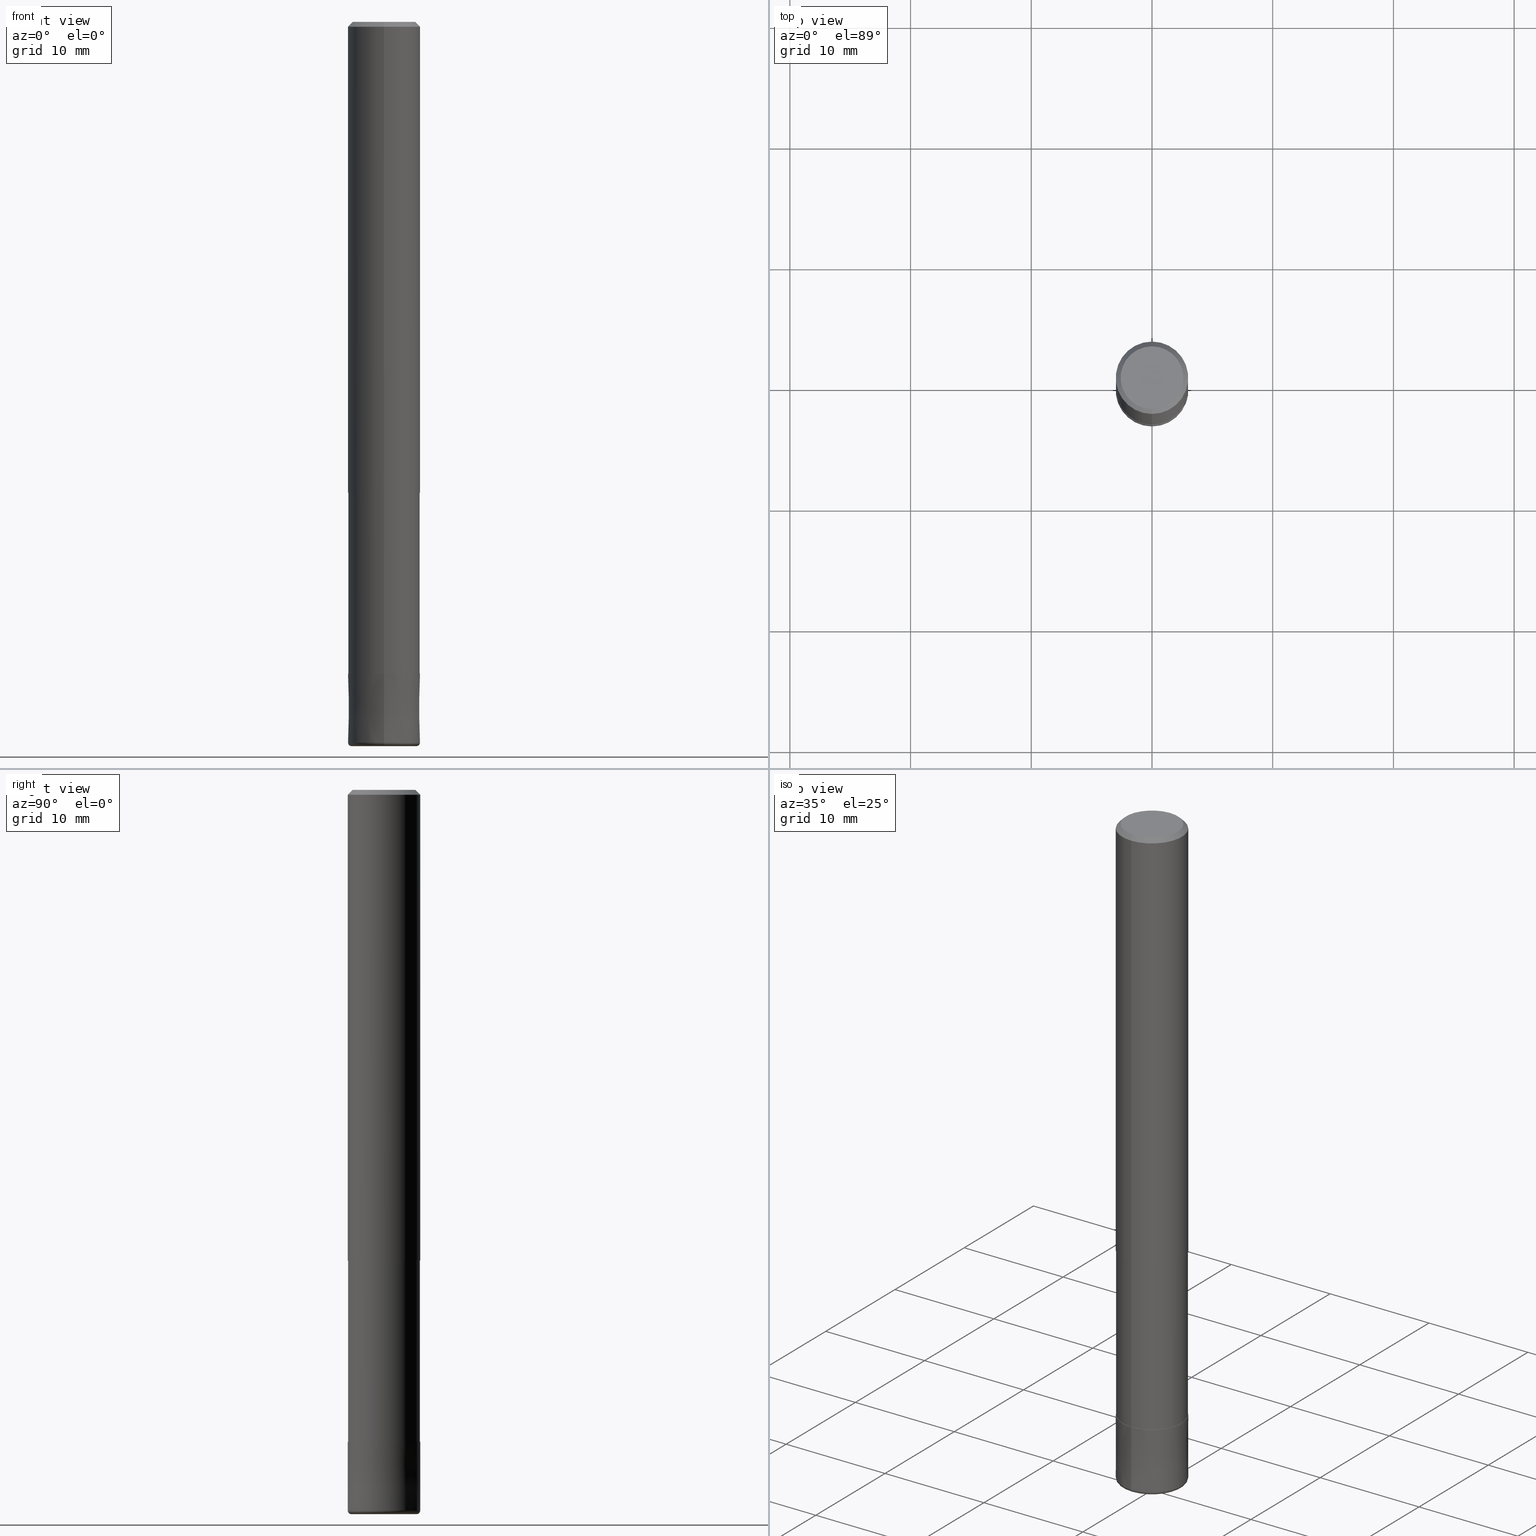
[diagram: canonical four-view strip — front | top / right | iso, engineering-drawing reading convention]
A machine part, canonical four-view strip (front | top / right | iso — engineering-drawing reading convention). The complete STEP part file that produces these views, byte-faithful:
ISO-10303-21;
HEADER;
FILE_DESCRIPTION(('no description'),'unknown implementation level');
FILE_NAME('HHRS6060-03-210-Huellk.stp','  ',('CIMSOURCE GmbH'),('CADClick - KiM GmbH - www.kimweb.de'),'unknown preprocess','ACIS','unknown authorization');
FILE_SCHEMA(('automotive_design'));
ENDSEC;
DATA;
#1=MECHANICAL_DESIGN_GEOMETRIC_PRESENTATION_REPRESENTATION(' ',(#14,#15,#16,#17,#18,#19,#20,#21,#22,#23,#24,#25,#26,#27,#28,#29,#30,#31,#32,#33,#34,#35,#36,#37,#38,#39,#40,#41,#42,#43,#44,#45,#46,#47,#48,#49,#50,#51,#52,#53,#54,#55,#56,#57,#58,#59,#60,#61,#62,#63,#64,#65,#66,#67,#68,#69,#70,#71,#72,#73,#74,#75,#76,#77,#78,#79,#80,#81,#82,#83,#84,#85,#86,#87,#88,#89,#90,#91,#92,#93,#94,#95,#96,#97),#10);
#2=PRODUCT_DEFINITION_CONTEXT('',#98,'design');
#3=APPLICATION_PROTOCOL_DEFINITION('INTERNATIONAL STANDARD','automotive_design',1994,#98);
#4=PRODUCT_CATEGORY_RELATIONSHIP('NONE','NONE',#99,#100);
#5=SHAPE_DEFINITION_REPRESENTATION(#101,#102);
#6=PRODUCT_DEFINITION_CONTEXT('',#103,'design');
#7=APPLICATION_PROTOCOL_DEFINITION('INTERNATIONAL STANDARD','automotive_design',1994,#103);
#8=PRODUCT_CATEGORY_RELATIONSHIP('NONE','NONE',#104,#105);
#9=SHAPE_DEFINITION_REPRESENTATION(#106,#107);
#10= (GEOMETRIC_REPRESENTATION_CONTEXT(3)GLOBAL_UNCERTAINTY_ASSIGNED_CONTEXT((#110))GLOBAL_UNIT_ASSIGNED_CONTEXT((#112,#113,#114))REPRESENTATION_CONTEXT('NONE','WORKSPACE'));
#14=STYLED_ITEM('',(#116),#117);
#15=STYLED_ITEM('',(#118),#119);
#16=STYLED_ITEM('',(#120),#121);
#17=STYLED_ITEM('',(#122),#123);
#18=STYLED_ITEM('',(#124),#125);
#19=STYLED_ITEM('',(#126),#127);
#20=STYLED_ITEM('',(#128),#129);
#21=STYLED_ITEM('',(#130),#131);
#22=STYLED_ITEM('',(#132),#133);
#23=STYLED_ITEM('',(#134),#135);
#24=STYLED_ITEM('',(#136),#137);
#25=STYLED_ITEM('',(#138),#139);
#26=STYLED_ITEM('',(#140),#141);
#27=STYLED_ITEM('',(#142),#143);
#28=STYLED_ITEM('',(#144),#145);
#29=STYLED_ITEM('',(#146),#147);
#30=STYLED_ITEM('',(#148),#149);
#31=STYLED_ITEM('',(#150),#151);
#32=STYLED_ITEM('',(#152),#153);
#33=STYLED_ITEM('',(#154),#155);
#34=STYLED_ITEM('',(#156),#157);
#35=STYLED_ITEM('',(#158),#159);
#36=STYLED_ITEM('',(#160),#161);
#37=STYLED_ITEM('',(#162),#163);
#38=STYLED_ITEM('',(#164),#165);
#39=STYLED_ITEM('',(#166),#167);
#40=STYLED_ITEM('',(#168),#169);
#41=STYLED_ITEM('',(#170),#171);
#42=STYLED_ITEM('',(#172),#173);
#43=STYLED_ITEM('',(#174),#175);
#44=STYLED_ITEM('',(#176),#177);
#45=STYLED_ITEM('',(#178),#179);
#46=STYLED_ITEM('',(#180),#181);
#47=STYLED_ITEM('',(#182),#183);
#48=STYLED_ITEM('',(#184),#185);
#49=STYLED_ITEM('',(#186),#187);
#50=STYLED_ITEM('',(#188),#189);
#51=STYLED_ITEM('',(#190),#191);
#52=STYLED_ITEM('',(#192),#193);
#53=STYLED_ITEM('',(#194),#195);
#54=STYLED_ITEM('',(#196),#197);
#55=STYLED_ITEM('',(#198),#199);
#56=STYLED_ITEM('',(#200),#201);
#57=STYLED_ITEM('',(#202),#203);
#58=STYLED_ITEM('',(#204),#205);
#59=STYLED_ITEM('',(#206),#207);
#60=STYLED_ITEM('',(#208),#209);
#61=STYLED_ITEM('',(#210),#211);
#62=STYLED_ITEM('',(#212),#213);
#63=STYLED_ITEM('',(#214),#215);
#64=STYLED_ITEM('',(#216),#217);
#65=STYLED_ITEM('',(#218),#219);
#66=STYLED_ITEM('',(#220),#221);
#67=STYLED_ITEM('',(#222),#223);
#68=STYLED_ITEM('',(#224),#225);
#69=STYLED_ITEM('',(#226),#227);
#70=STYLED_ITEM('',(#228),#229);
#71=STYLED_ITEM('',(#230),#231);
#72=STYLED_ITEM('',(#232),#233);
#73=STYLED_ITEM('',(#234),#235);
#74=STYLED_ITEM('',(#236),#237);
#75=STYLED_ITEM('',(#238),#239);
#76=STYLED_ITEM('',(#240),#241);
#77=STYLED_ITEM('',(#242),#243);
#78=STYLED_ITEM('',(#244),#245);
#79=STYLED_ITEM('',(#246),#247);
#80=STYLED_ITEM('',(#248),#249);
#81=STYLED_ITEM('',(#250),#251);
#82=STYLED_ITEM('',(#252),#253);
#83=STYLED_ITEM('',(#254),#255);
#84=STYLED_ITEM('',(#256),#257);
#85=STYLED_ITEM('',(#258),#259);
#86=STYLED_ITEM('',(#260),#261);
#87=STYLED_ITEM('',(#262),#263);
#88=STYLED_ITEM('',(#264),#265);
#89=STYLED_ITEM('',(#266),#267);
#90=STYLED_ITEM('',(#268),#269);
#91=STYLED_ITEM('',(#270),#271);
#92=STYLED_ITEM('',(#272),#273);
#93=STYLED_ITEM('',(#274),#275);
#94=STYLED_ITEM('',(#276),#277);
#95=STYLED_ITEM('',(#278),#279);
#96=STYLED_ITEM('',(#280),#281);
#97=STYLED_ITEM('',(#282),#283);
#98=APPLICATION_CONTEXT(' ');
#99=PRODUCT_CATEGORY('part','NONE');
#100=PRODUCT_RELATED_PRODUCT_CATEGORY('detail',' ',(#284));
#101=PRODUCT_DEFINITION_SHAPE('NONE','NONE',#285);
#102=ADVANCED_BREP_SHAPE_REPRESENTATION('1',(#247,#286),#10);
#103=APPLICATION_CONTEXT(' ');
#104=PRODUCT_CATEGORY('part','NONE');
#105=PRODUCT_RELATED_PRODUCT_CATEGORY('detail',' ',(#287));
#106=PRODUCT_DEFINITION_SHAPE('NONE','NONE',#288);
#107=ADVANCED_BREP_SHAPE_REPRESENTATION('2',(#131,#289),#10);
#110=UNCERTAINTY_MEASURE_WITH_UNIT(LENGTH_MEASURE(1.0E-006),#112,'','');
#112= (CONVERSION_BASED_UNIT('MILLIMETRE',#292)LENGTH_UNIT()NAMED_UNIT(#295));
#113= (NAMED_UNIT(#297)PLANE_ANGLE_UNIT()SI_UNIT($,.RADIAN.));
#114= (NAMED_UNIT(#297)SOLID_ANGLE_UNIT()SI_UNIT($,.STERADIAN.));
#116=PRESENTATION_STYLE_ASSIGNMENT((#303));
#117=VERTEX_POINT('',#304);
#118=PRESENTATION_STYLE_ASSIGNMENT((#305));
#119=ADVANCED_FACE('',(#306),#307,.F.);
#120=PRESENTATION_STYLE_ASSIGNMENT((#308));
#121=VERTEX_POINT('',#309);
#122=PRESENTATION_STYLE_ASSIGNMENT((#310));
#123=EDGE_CURVE('',#227,#151,#311,.T.);
#124=PRESENTATION_STYLE_ASSIGNMENT((#312));
#125=EDGE_CURVE('',#153,#151,#313,.T.);
#126=PRESENTATION_STYLE_ASSIGNMENT((#314));
#127=EDGE_CURVE('',#223,#143,#315,.T.);
#128=PRESENTATION_STYLE_ASSIGNMENT((#316));
#129=EDGE_CURVE('',#229,#149,#317,.T.);
#130=PRESENTATION_STYLE_ASSIGNMENT((#318));
#131=MANIFOLD_SOLID_BREP('2',#319);
#132=PRESENTATION_STYLE_ASSIGNMENT((#320));
#133=VERTEX_POINT('',#321);
#134=PRESENTATION_STYLE_ASSIGNMENT((#322));
#135=EDGE_CURVE('',#143,#223,#323,.T.);
#136=PRESENTATION_STYLE_ASSIGNMENT((#324));
#137=EDGE_CURVE('',#139,#185,#325,.T.);
#138=PRESENTATION_STYLE_ASSIGNMENT((#326));
#139=VERTEX_POINT('',#327);
#140=PRESENTATION_STYLE_ASSIGNMENT((#328));
#141=EDGE_CURVE('',#121,#273,#329,.T.);
#142=PRESENTATION_STYLE_ASSIGNMENT((#330));
#143=VERTEX_POINT('',#331);
#144=PRESENTATION_STYLE_ASSIGNMENT((#332));
#145=VERTEX_POINT('',#333);
#146=PRESENTATION_STYLE_ASSIGNMENT((#334));
#147=EDGE_CURVE('',#231,#241,#335,.T.);
#148=PRESENTATION_STYLE_ASSIGNMENT((#336));
#149=VERTEX_POINT('',#337);
#150=PRESENTATION_STYLE_ASSIGNMENT((#338));
#151=VERTEX_POINT('',#339);
#152=PRESENTATION_STYLE_ASSIGNMENT((#340));
#153=VERTEX_POINT('',#341);
#154=PRESENTATION_STYLE_ASSIGNMENT((#342));
#155=EDGE_CURVE('',#145,#149,#343,.T.);
#156=PRESENTATION_STYLE_ASSIGNMENT((#344));
#157=EDGE_CURVE('',#217,#183,#345,.T.);
#158=PRESENTATION_STYLE_ASSIGNMENT((#346));
#159=ADVANCED_FACE('',(#347),#348,.T.);
#160=PRESENTATION_STYLE_ASSIGNMENT((#349));
#161=EDGE_CURVE('',#277,#265,#350,.T.);
#162=PRESENTATION_STYLE_ASSIGNMENT((#351));
#163=EDGE_CURVE('',#183,#217,#352,.T.);
#164=PRESENTATION_STYLE_ASSIGNMENT((#353));
#165=ADVANCED_FACE('',(#354),#355,.T.);
#166=PRESENTATION_STYLE_ASSIGNMENT((#356));
#167=EDGE_CURVE('',#229,#261,#357,.T.);
#168=PRESENTATION_STYLE_ASSIGNMENT((#358));
#169=ADVANCED_FACE('',(#359),#360,.T.);
#170=PRESENTATION_STYLE_ASSIGNMENT((#361));
#171=EDGE_CURVE('',#149,#229,#362,.T.);
#172=PRESENTATION_STYLE_ASSIGNMENT((#363));
#173=ADVANCED_FACE('',(#364),#365,.T.);
#174=PRESENTATION_STYLE_ASSIGNMENT((#366));
#175=EDGE_CURVE('',#227,#117,#367,.T.);
#176=PRESENTATION_STYLE_ASSIGNMENT((#368));
#177=ADVANCED_FACE('',(#369,#370),#371,.T.);
#178=PRESENTATION_STYLE_ASSIGNMENT((#372));
#179=EDGE_CURVE('',#265,#217,#373,.T.);
#180=PRESENTATION_STYLE_ASSIGNMENT((#374));
#181=EDGE_CURVE('',#277,#219,#375,.T.);
#182=PRESENTATION_STYLE_ASSIGNMENT((#376));
#183=VERTEX_POINT('',#377);
#184=PRESENTATION_STYLE_ASSIGNMENT((#378));
#185=VERTEX_POINT('',#379);
#186=PRESENTATION_STYLE_ASSIGNMENT((#380));
#187=EDGE_CURVE('',#151,#227,#381,.T.);
#188=PRESENTATION_STYLE_ASSIGNMENT((#382));
#189=ADVANCED_FACE('',(#383),#384,.T.);
#190=PRESENTATION_STYLE_ASSIGNMENT((#385));
#191=EDGE_CURVE('',#203,#207,#386,.T.);
#192=PRESENTATION_STYLE_ASSIGNMENT((#387));
#193=EDGE_CURVE('',#117,#153,#388,.T.);
#194=PRESENTATION_STYLE_ASSIGNMENT((#389));
#195=EDGE_CURVE('',#143,#261,#390,.T.);
#196=PRESENTATION_STYLE_ASSIGNMENT((#391));
#197=EDGE_CURVE('',#261,#145,#392,.T.);
#198=PRESENTATION_STYLE_ASSIGNMENT((#393));
#199=ADVANCED_FACE('',(#394),#395,.T.);
#200=PRESENTATION_STYLE_ASSIGNMENT((#396));
#201=EDGE_CURVE('',#241,#139,#397,.T.);
#202=PRESENTATION_STYLE_ASSIGNMENT((#398));
#203=VERTEX_POINT('',#399);
#204=PRESENTATION_STYLE_ASSIGNMENT((#400));
#205=EDGE_CURVE('',#207,#203,#401,.T.);
#206=PRESENTATION_STYLE_ASSIGNMENT((#402));
#207=VERTEX_POINT('',#403);
#208=PRESENTATION_STYLE_ASSIGNMENT((#404));
#209=ADVANCED_FACE('',(#405),#406,.T.);
#210=PRESENTATION_STYLE_ASSIGNMENT((#407));
#211=ADVANCED_FACE('',(#408),#409,.T.);
#212=PRESENTATION_STYLE_ASSIGNMENT((#410));
#213=EDGE_CURVE('',#153,#117,#411,.T.);
#214=PRESENTATION_STYLE_ASSIGNMENT((#412));
#215=ADVANCED_FACE('',(#413),#414,.T.);
#216=PRESENTATION_STYLE_ASSIGNMENT((#415));
#217=VERTEX_POINT('',#416);
#218=PRESENTATION_STYLE_ASSIGNMENT((#417));
#219=VERTEX_POINT('',#418);
#220=PRESENTATION_STYLE_ASSIGNMENT((#419));
#221=ADVANCED_FACE('',(#420),#421,.T.);
#222=PRESENTATION_STYLE_ASSIGNMENT((#422));
#223=VERTEX_POINT('',#423);
#224=PRESENTATION_STYLE_ASSIGNMENT((#424));
#225=EDGE_CURVE('',#185,#231,#425,.T.);
#226=PRESENTATION_STYLE_ASSIGNMENT((#426));
#227=VERTEX_POINT('',#427);
#228=PRESENTATION_STYLE_ASSIGNMENT((#428));
#229=VERTEX_POINT('',#429);
#230=PRESENTATION_STYLE_ASSIGNMENT((#430));
#231=VERTEX_POINT('',#431);
#232=PRESENTATION_STYLE_ASSIGNMENT((#432));
#233=EDGE_CURVE('',#183,#277,#433,.T.);
#234=PRESENTATION_STYLE_ASSIGNMENT((#434));
#235=EDGE_CURVE('',#219,#133,#435,.T.);
#236=PRESENTATION_STYLE_ASSIGNMENT((#436));
#237=ADVANCED_FACE('',(#437),#438,.T.);
#238=PRESENTATION_STYLE_ASSIGNMENT((#439));
#239=EDGE_CURVE('',#185,#139,#440,.T.);
#240=PRESENTATION_STYLE_ASSIGNMENT((#441));
#241=VERTEX_POINT('',#442);
#242=PRESENTATION_STYLE_ASSIGNMENT((#443));
#243=EDGE_CURVE('',#265,#277,#444,.T.);
#244=PRESENTATION_STYLE_ASSIGNMENT((#445));
#245=EDGE_CURVE('',#241,#231,#446,.T.);
#246=PRESENTATION_STYLE_ASSIGNMENT((#447));
#247=MANIFOLD_SOLID_BREP('1',#448);
#248=PRESENTATION_STYLE_ASSIGNMENT((#449));
#249=ADVANCED_FACE('',(#450,#451),#452,.T.);
#250=PRESENTATION_STYLE_ASSIGNMENT((#453));
#251=ADVANCED_FACE('',(#454,#455),#456,.T.);
#252=PRESENTATION_STYLE_ASSIGNMENT((#457));
#253=EDGE_CURVE('',#121,#207,#458,.T.);
#254=PRESENTATION_STYLE_ASSIGNMENT((#459));
#255=EDGE_CURVE('',#145,#261,#460,.T.);
#256=PRESENTATION_STYLE_ASSIGNMENT((#461));
#257=ADVANCED_FACE('',(#462,#463),#464,.T.);
#258=PRESENTATION_STYLE_ASSIGNMENT((#465));
#259=EDGE_CURVE('',#203,#273,#466,.T.);
#260=PRESENTATION_STYLE_ASSIGNMENT((#467));
#261=VERTEX_POINT('',#468);
#262=PRESENTATION_STYLE_ASSIGNMENT((#469));
#263=EDGE_CURVE('',#145,#223,#470,.T.);
#264=PRESENTATION_STYLE_ASSIGNMENT((#471));
#265=VERTEX_POINT('',#472);
#266=PRESENTATION_STYLE_ASSIGNMENT((#473));
#267=EDGE_CURVE('',#273,#121,#474,.T.);
#268=PRESENTATION_STYLE_ASSIGNMENT((#475));
#269=ADVANCED_FACE('',(#476),#477,.T.);
#270=PRESENTATION_STYLE_ASSIGNMENT((#478));
#271=ADVANCED_FACE('',(#479),#480,.F.);
#272=PRESENTATION_STYLE_ASSIGNMENT((#481));
#273=VERTEX_POINT('',#482);
#274=PRESENTATION_STYLE_ASSIGNMENT((#483));
#275=ADVANCED_FACE('',(#484),#485,.T.);
#276=PRESENTATION_STYLE_ASSIGNMENT((#486));
#277=VERTEX_POINT('',#487);
#278=PRESENTATION_STYLE_ASSIGNMENT((#488));
#279=ADVANCED_FACE('',(#489),#490,.T.);
#280=PRESENTATION_STYLE_ASSIGNMENT((#491));
#281=EDGE_CURVE('',#133,#265,#492,.T.);
#282=PRESENTATION_STYLE_ASSIGNMENT((#493));
#283=EDGE_CURVE('',#133,#219,#494,.T.);
#284=PRODUCT('1','1','PART-1-DESC',(#495));
#285=PRODUCT_DEFINITION('NONE','NONE',#496,#2);
#286=AXIS2_PLACEMENT_3D('',#497,#498,#499);
#287=PRODUCT('2','2','PART-2-DESC',(#500));
#288=PRODUCT_DEFINITION('NONE','NONE',#501,#6);
#289=AXIS2_PLACEMENT_3D('',#502,#503,#504);
#292=LENGTH_MEASURE_WITH_UNIT(LENGTH_MEASURE(1.0),#505);
#295=DIMENSIONAL_EXPONENTS(1.0,0.0,0.0,0.0,0.0,0.0,0.0);
#297=DIMENSIONAL_EXPONENTS(0.0,0.0,0.0,0.0,0.0,0.0,0.0);
#303=POINT_STYLE(' ',#506,POSITIVE_LENGTH_MEASURE(1.0E-006),#507);
#304=CARTESIAN_POINT('',(0.0,2.97495,-54.0));
#305=SURFACE_STYLE_USAGE(.BOTH.,#508);
#306=FACE_OUTER_BOUND('',#509,.T.);
#307=CYLINDRICAL_SURFACE('',#510,1.35);
#308=POINT_STYLE(' ',#511,POSITIVE_LENGTH_MEASURE(1.0E-006),#512);
#309=CARTESIAN_POINT('',(0.0,1.35,-54.0));
#310=CURVE_STYLE('',#513,POSITIVE_LENGTH_MEASURE(1.0E-006),#514);
#311=CIRCLE('',#515,2.97495);
#312=CURVE_STYLE('',#516,POSITIVE_LENGTH_MEASURE(1.0E-006),#517);
#313=LINE('',#518,#519);
#314=CURVE_STYLE('',#520,POSITIVE_LENGTH_MEASURE(1.0E-006),#521);
#315=CIRCLE('',#522,2.9999);
#316=CURVE_STYLE('',#523,POSITIVE_LENGTH_MEASURE(1.0E-006),#524);
#317=CIRCLE('',#525,2.7);
#318=SURFACE_STYLE_USAGE(.BOTH.,#526);
#319=CLOSED_SHELL('',(#271,#221,#169,#251,#165,#189,#257,#119));
#320=POINT_STYLE(' ',#527,POSITIVE_LENGTH_MEASURE(1.0E-006),#528);
#321=CARTESIAN_POINT('',(0.0,2.6,0.0));
#322=CURVE_STYLE('',#529,POSITIVE_LENGTH_MEASURE(1.0E-006),#530);
#323=CIRCLE('',#531,2.9999);
#324=CURVE_STYLE('',#532,POSITIVE_LENGTH_MEASURE(1.0E-006),#533);
#325=CIRCLE('',#534,1.35);
#326=POINT_STYLE(' ',#535,POSITIVE_LENGTH_MEASURE(1.0E-006),#536);
#327=CARTESIAN_POINT('',(1.65321857766021E-016,-1.35,-54.0));
#328=CURVE_STYLE('',#537,POSITIVE_LENGTH_MEASURE(1.0E-006),#538);
#329=CIRCLE('',#539,1.35);
#330=POINT_STYLE(' ',#540,POSITIVE_LENGTH_MEASURE(1.0E-006),#541);
#331=CARTESIAN_POINT('',(0.0,2.9999,-54.0));
#332=POINT_STYLE(' ',#542,POSITIVE_LENGTH_MEASURE(1.0E-006),#543);
#333=CARTESIAN_POINT('',(3.67381906146713E-016,-3.0,-59.7));
#334=CURVE_STYLE('',#544,POSITIVE_LENGTH_MEASURE(1.0E-006),#545);
#335=CIRCLE('',#546,1.35);
#336=POINT_STYLE(' ',#547,POSITIVE_LENGTH_MEASURE(1.0E-006),#548);
#337=CARTESIAN_POINT('',(3.30643715532042E-016,-2.7,-60.0));
#338=POINT_STYLE(' ',#549,POSITIVE_LENGTH_MEASURE(1.0E-006),#550);
#339=CARTESIAN_POINT('',(3.64314267230388E-016,-2.97495,-39.0));
#340=POINT_STYLE(' ',#551,POSITIVE_LENGTH_MEASURE(1.0E-006),#552);
#341=CARTESIAN_POINT('',(3.64314267230388E-016,-2.97495,-54.0));
#342=CURVE_STYLE('',#553,POSITIVE_LENGTH_MEASURE(1.0E-006),#554);
#343=CIRCLE('',#555,0.300000000000002);
#344=CURVE_STYLE('',#556,POSITIVE_LENGTH_MEASURE(1.0E-006),#557);
#345=CIRCLE('',#558,3.0);
#346=SURFACE_STYLE_USAGE(.BOTH.,#559);
#347=FACE_OUTER_BOUND('',#560,.T.);
#348=PLANE('',#561);
#349=CURVE_STYLE('',#562,POSITIVE_LENGTH_MEASURE(1.0E-006),#563);
#350=CIRCLE('',#564,3.0);
#351=CURVE_STYLE('',#565,POSITIVE_LENGTH_MEASURE(1.0E-006),#566);
#352=CIRCLE('',#567,3.0);
#353=SURFACE_STYLE_USAGE(.BOTH.,#568);
#354=FACE_OUTER_BOUND('',#569,.T.);
#355=CONICAL_SURFACE('',#570,2.99995,1.75438596473599E-005);
#356=CURVE_STYLE('',#571,POSITIVE_LENGTH_MEASURE(1.0E-006),#572);
#357=CIRCLE('',#573,0.300000000000002);
#358=SURFACE_STYLE_USAGE(.BOTH.,#574);
#359=FACE_OUTER_BOUND('',#575,.T.);
#360=CONICAL_SURFACE('',#576,2.99995,1.75438596473599E-005);
#361=CURVE_STYLE('',#577,POSITIVE_LENGTH_MEASURE(1.0E-006),#578);
#362=CIRCLE('',#579,2.7);
#363=SURFACE_STYLE_USAGE(.BOTH.,#580);
#364=FACE_OUTER_BOUND('',#581,.T.);
#365=CYLINDRICAL_SURFACE('',#582,1.35);
#366=CURVE_STYLE('',#583,POSITIVE_LENGTH_MEASURE(1.0E-006),#584);
#367=LINE('',#585,#586);
#368=SURFACE_STYLE_USAGE(.BOTH.,#587);
#369=FACE_BOUND('',#588,.T.);
#370=FACE_OUTER_BOUND('',#589,.T.);
#371=PLANE('',#590);
#372=CURVE_STYLE('',#591,POSITIVE_LENGTH_MEASURE(1.0E-006),#592);
#373=LINE('',#593,#594);
#374=CURVE_STYLE('',#595,POSITIVE_LENGTH_MEASURE(1.0E-006),#596);
#375=LINE('',#597,#598);
#376=POINT_STYLE(' ',#599,POSITIVE_LENGTH_MEASURE(1.0E-006),#600);
#377=CARTESIAN_POINT('',(3.67381906146713E-016,-3.0,-39.0));
#378=POINT_STYLE(' ',#601,POSITIVE_LENGTH_MEASURE(1.0E-006),#602);
#379=CARTESIAN_POINT('',(0.0,1.35,-54.0));
#380=CURVE_STYLE('',#603,POSITIVE_LENGTH_MEASURE(1.0E-006),#604);
#381=CIRCLE('',#605,2.97495);
#382=SURFACE_STYLE_USAGE(.BOTH.,#606);
#383=FACE_OUTER_BOUND('',#607,.T.);
#384=TOROIDAL_SURFACE('',#608,2.7,0.300000000000002);
#385=CURVE_STYLE('',#609,POSITIVE_LENGTH_MEASURE(1.0E-006),#610);
#386=CIRCLE('',#611,1.35);
#387=CURVE_STYLE('',#612,POSITIVE_LENGTH_MEASURE(1.0E-006),#613);
#388=CIRCLE('',#614,2.97495);
#389=CURVE_STYLE('',#615,POSITIVE_LENGTH_MEASURE(1.0E-006),#616);
#390=LINE('',#617,#618);
#391=CURVE_STYLE('',#619,POSITIVE_LENGTH_MEASURE(1.0E-006),#620);
#392=CIRCLE('',#621,3.0);
#393=SURFACE_STYLE_USAGE(.BOTH.,#622);
#394=FACE_OUTER_BOUND('',#623,.T.);
#395=CYLINDRICAL_SURFACE('',#624,2.97495);
#396=CURVE_STYLE('',#625,POSITIVE_LENGTH_MEASURE(1.0E-006),#626);
#397=LINE('',#627,#628);
#398=POINT_STYLE(' ',#629,POSITIVE_LENGTH_MEASURE(1.0E-006),#630);
#399=CARTESIAN_POINT('',(1.65321857766021E-016,-1.35,-60.0));
#400=CURVE_STYLE('',#631,POSITIVE_LENGTH_MEASURE(1.0E-006),#632);
#401=CIRCLE('',#633,1.35);
#402=POINT_STYLE(' ',#634,POSITIVE_LENGTH_MEASURE(1.0E-006),#635);
#403=CARTESIAN_POINT('',(0.0,1.35,-60.0));
#404=SURFACE_STYLE_USAGE(.BOTH.,#636);
#405=FACE_OUTER_BOUND('',#637,.T.);
#406=CONICAL_SURFACE('',#638,2.8,0.78539816339745);
#407=SURFACE_STYLE_USAGE(.BOTH.,#639);
#408=FACE_OUTER_BOUND('',#640,.T.);
#409=CYLINDRICAL_SURFACE('',#641,3.0);
#410=CURVE_STYLE('',#642,POSITIVE_LENGTH_MEASURE(1.0E-006),#643);
#411=CIRCLE('',#644,2.97495);
#412=SURFACE_STYLE_USAGE(.BOTH.,#645);
#413=FACE_OUTER_BOUND('',#646,.T.);
#414=CONICAL_SURFACE('',#647,2.8,0.78539816339745);
#415=POINT_STYLE(' ',#648,POSITIVE_LENGTH_MEASURE(1.0E-006),#649);
#416=CARTESIAN_POINT('',(0.0,3.0,-39.0));
#417=POINT_STYLE(' ',#650,POSITIVE_LENGTH_MEASURE(1.0E-006),#651);
#418=CARTESIAN_POINT('',(3.18397651993818E-016,-2.6,0.0));
#419=SURFACE_STYLE_USAGE(.BOTH.,#652);
#420=FACE_OUTER_BOUND('',#653,.T.);
#421=TOROIDAL_SURFACE('',#654,2.7,0.300000000000002);
#422=POINT_STYLE(' ',#655,POSITIVE_LENGTH_MEASURE(1.0E-006),#656);
#423=CARTESIAN_POINT('',(3.67369660083175E-016,-2.9999,-54.0));
#424=CURVE_STYLE('',#657,POSITIVE_LENGTH_MEASURE(1.0E-006),#658);
#425=LINE('',#659,#660);
#426=POINT_STYLE(' ',#661,POSITIVE_LENGTH_MEASURE(1.0E-006),#662);
#427=CARTESIAN_POINT('',(0.0,2.97495,-39.0));
#428=POINT_STYLE(' ',#663,POSITIVE_LENGTH_MEASURE(1.0E-006),#664);
#429=CARTESIAN_POINT('',(0.0,2.7,-60.0));
#430=POINT_STYLE(' ',#665,POSITIVE_LENGTH_MEASURE(1.0E-006),#666);
#431=CARTESIAN_POINT('',(0.0,1.35,-59.9));
#432=CURVE_STYLE('',#667,POSITIVE_LENGTH_MEASURE(1.0E-006),#668);
#433=LINE('',#669,#670);
#434=CURVE_STYLE('',#671,POSITIVE_LENGTH_MEASURE(1.0E-006),#672);
#435=CIRCLE('',#673,2.6);
#436=SURFACE_STYLE_USAGE(.BOTH.,#674);
#437=FACE_OUTER_BOUND('',#675,.T.);
#438=CYLINDRICAL_SURFACE('',#676,2.97495);
#439=CURVE_STYLE('',#677,POSITIVE_LENGTH_MEASURE(1.0E-006),#678);
#440=CIRCLE('',#679,1.35);
#441=POINT_STYLE(' ',#680,POSITIVE_LENGTH_MEASURE(1.0E-006),#681);
#442=CARTESIAN_POINT('',(1.65321857766021E-016,-1.35,-59.9));
#443=CURVE_STYLE('',#682,POSITIVE_LENGTH_MEASURE(1.0E-006),#683);
#444=CIRCLE('',#684,3.0);
#445=CURVE_STYLE('',#685,POSITIVE_LENGTH_MEASURE(1.0E-006),#686);
#446=CIRCLE('',#687,1.35);
#447=SURFACE_STYLE_USAGE(.BOTH.,#688);
#448=CLOSED_SHELL('',(#173,#237,#279,#209,#249,#159,#215,#211,#199,#177,#269,#275));
#449=SURFACE_STYLE_USAGE(.BOTH.,#689);
#450=FACE_OUTER_BOUND('',#690,.T.);
#451=FACE_BOUND('',#691,.T.);
#452=PLANE('',#692);
#453=SURFACE_STYLE_USAGE(.BOTH.,#693);
#454=FACE_OUTER_BOUND('',#694,.T.);
#455=FACE_BOUND('',#695,.T.);
#456=PLANE('',#696);
#457=CURVE_STYLE('',#697,POSITIVE_LENGTH_MEASURE(1.0E-006),#698);
#458=LINE('',#699,#700);
#459=CURVE_STYLE('',#701,POSITIVE_LENGTH_MEASURE(1.0E-006),#702);
#460=CIRCLE('',#703,3.0);
#461=SURFACE_STYLE_USAGE(.BOTH.,#704);
#462=FACE_BOUND('',#705,.T.);
#463=FACE_OUTER_BOUND('',#706,.T.);
#464=PLANE('',#707);
#465=CURVE_STYLE('',#708,POSITIVE_LENGTH_MEASURE(1.0E-006),#709);
#466=LINE('',#710,#711);
#467=POINT_STYLE(' ',#712,POSITIVE_LENGTH_MEASURE(1.0E-006),#713);
#468=CARTESIAN_POINT('',(0.0,3.0,-59.7));
#469=CURVE_STYLE('',#714,POSITIVE_LENGTH_MEASURE(1.0E-006),#715);
#470=LINE('',#716,#717);
#471=POINT_STYLE(' ',#718,POSITIVE_LENGTH_MEASURE(1.0E-006),#719);
#472=CARTESIAN_POINT('',(0.0,3.0,-0.399999999999999));
#473=CURVE_STYLE('',#720,POSITIVE_LENGTH_MEASURE(1.0E-006),#721);
#474=CIRCLE('',#722,1.35);
#475=SURFACE_STYLE_USAGE(.BOTH.,#723);
#476=FACE_OUTER_BOUND('',#724,.T.);
#477=CYLINDRICAL_SURFACE('',#725,1.35);
#478=SURFACE_STYLE_USAGE(.BOTH.,#726);
#479=FACE_OUTER_BOUND('',#727,.T.);
#480=CYLINDRICAL_SURFACE('',#728,1.35);
#481=POINT_STYLE(' ',#729,POSITIVE_LENGTH_MEASURE(1.0E-006),#730);
#482=CARTESIAN_POINT('',(1.65321857766021E-016,-1.35,-54.0));
#483=SURFACE_STYLE_USAGE(.BOTH.,#731);
#484=FACE_OUTER_BOUND('',#732,.T.);
#485=PLANE('',#733);
#486=POINT_STYLE(' ',#734,POSITIVE_LENGTH_MEASURE(1.0E-006),#735);
#487=CARTESIAN_POINT('',(3.67381906146713E-016,-3.0,-0.399999999999999));
#488=SURFACE_STYLE_USAGE(.BOTH.,#736);
#489=FACE_OUTER_BOUND('',#737,.T.);
#490=CYLINDRICAL_SURFACE('',#738,3.0);
#491=CURVE_STYLE('',#739,POSITIVE_LENGTH_MEASURE(1.0E-006),#740);
#492=LINE('',#741,#742);
#493=CURVE_STYLE('',#743,POSITIVE_LENGTH_MEASURE(1.0E-006),#744);
#494=CIRCLE('',#745,2.6);
#495=PRODUCT_CONTEXT('',#98,'mechanical');
#496=PRODUCT_DEFINITION_FORMATION_WITH_SPECIFIED_SOURCE(' ','NONE',#284,.NOT_KNOWN.);
#497=CARTESIAN_POINT('',(0.0,0.0,0.0));
#498=DIRECTION('',(0.0,0.0,1.0));
#499=DIRECTION('',(1.0,0.0,0.0));
#500=PRODUCT_CONTEXT('',#103,'mechanical');
#501=PRODUCT_DEFINITION_FORMATION_WITH_SPECIFIED_SOURCE(' ','NONE',#287,.NOT_KNOWN.);
#502=CARTESIAN_POINT('',(0.0,0.0,0.0));
#503=DIRECTION('',(0.0,0.0,1.0));
#504=DIRECTION('',(1.0,0.0,0.0));
#505= (NAMED_UNIT(#295)LENGTH_UNIT()SI_UNIT(.MILLI.,.METRE.));
#506=PRE_DEFINED_MARKER('');
#507=COLOUR_RGB('',0.498039215803146,0.498039215803146,0.498039215803146);
#508=SURFACE_SIDE_STYLE('',(#747));
#509=EDGE_LOOP('',(#748,#749,#750,#751));
#510=AXIS2_PLACEMENT_3D('',#752,#753,#754);
#511=PRE_DEFINED_MARKER('');
#512=COLOUR_RGB('',0.800000011920929,0.800000011920929,0.800000011920929);
#513=DRAUGHTING_PRE_DEFINED_CURVE_FONT('continuous');
#514=COLOUR_RGB('',0.498039215803146,0.498039215803146,0.498039215803146);
#515=AXIS2_PLACEMENT_3D('',#755,#756,#757);
#516=DRAUGHTING_PRE_DEFINED_CURVE_FONT('continuous');
#517=COLOUR_RGB('',0.498039215803146,0.498039215803146,0.498039215803146);
#518=CARTESIAN_POINT('',(3.64314267230388E-016,-2.97495,-46.5));
#519=VECTOR('',#758,1.0);
#520=DRAUGHTING_PRE_DEFINED_CURVE_FONT('continuous');
#521=COLOUR_RGB('',0.800000011920929,0.800000011920929,0.800000011920929);
#522=AXIS2_PLACEMENT_3D('',#759,#760,#761);
#523=DRAUGHTING_PRE_DEFINED_CURVE_FONT('continuous');
#524=COLOUR_RGB('',0.800000011920929,0.800000011920929,0.800000011920929);
#525=AXIS2_PLACEMENT_3D('',#762,#763,#764);
#526=SURFACE_SIDE_STYLE('',(#765));
#527=PRE_DEFINED_MARKER('');
#528=COLOUR_RGB('',0.498039215803146,0.498039215803146,0.498039215803146);
#529=DRAUGHTING_PRE_DEFINED_CURVE_FONT('continuous');
#530=COLOUR_RGB('',0.800000011920929,0.800000011920929,0.800000011920929);
#531=AXIS2_PLACEMENT_3D('',#766,#767,#768);
#532=DRAUGHTING_PRE_DEFINED_CURVE_FONT('continuous');
#533=COLOUR_RGB('',0.498039215803146,0.498039215803146,0.498039215803146);
#534=AXIS2_PLACEMENT_3D('',#769,#770,#771);
#535=PRE_DEFINED_MARKER('');
#536=COLOUR_RGB('',0.498039215803146,0.498039215803146,0.498039215803146);
#537=DRAUGHTING_PRE_DEFINED_CURVE_FONT('continuous');
#538=COLOUR_RGB('',0.800000011920929,0.800000011920929,0.800000011920929);
#539=AXIS2_PLACEMENT_3D('',#772,#773,#774);
#540=PRE_DEFINED_MARKER('');
#541=COLOUR_RGB('',0.800000011920929,0.800000011920929,0.800000011920929);
#542=PRE_DEFINED_MARKER('');
#543=COLOUR_RGB('',0.800000011920929,0.800000011920929,0.800000011920929);
#544=DRAUGHTING_PRE_DEFINED_CURVE_FONT('continuous');
#545=COLOUR_RGB('',0.498039215803146,0.498039215803146,0.498039215803146);
#546=AXIS2_PLACEMENT_3D('',#775,#776,#777);
#547=PRE_DEFINED_MARKER('');
#548=COLOUR_RGB('',0.800000011920929,0.800000011920929,0.800000011920929);
#549=PRE_DEFINED_MARKER('');
#550=COLOUR_RGB('',0.498039215803146,0.498039215803146,0.498039215803146);
#551=PRE_DEFINED_MARKER('');
#552=COLOUR_RGB('',0.498039215803146,0.498039215803146,0.498039215803146);
#553=DRAUGHTING_PRE_DEFINED_CURVE_FONT('continuous');
#554=COLOUR_RGB('',0.800000011920929,0.800000011920929,0.800000011920929);
#555=AXIS2_PLACEMENT_3D('',#778,#779,#780);
#556=DRAUGHTING_PRE_DEFINED_CURVE_FONT('continuous');
#557=COLOUR_RGB('',0.498039215803146,0.498039215803146,0.498039215803146);
#558=AXIS2_PLACEMENT_3D('',#781,#782,#783);
#559=SURFACE_SIDE_STYLE('',(#784));
#560=EDGE_LOOP('',(#785,#786));
#561=AXIS2_PLACEMENT_3D('',#787,#788,#789);
#562=DRAUGHTING_PRE_DEFINED_CURVE_FONT('continuous');
#563=COLOUR_RGB('',0.498039215803146,0.498039215803146,0.498039215803146);
#564=AXIS2_PLACEMENT_3D('',#790,#791,#792);
#565=DRAUGHTING_PRE_DEFINED_CURVE_FONT('continuous');
#566=COLOUR_RGB('',0.498039215803146,0.498039215803146,0.498039215803146);
#567=AXIS2_PLACEMENT_3D('',#793,#794,#795);
#568=SURFACE_SIDE_STYLE('',(#796));
#569=EDGE_LOOP('',(#797,#798,#799,#800));
#570=AXIS2_PLACEMENT_3D('',#801,#802,#803);
#571=DRAUGHTING_PRE_DEFINED_CURVE_FONT('continuous');
#572=COLOUR_RGB('',0.800000011920929,0.800000011920929,0.800000011920929);
#573=AXIS2_PLACEMENT_3D('',#804,#805,#806);
#574=SURFACE_SIDE_STYLE('',(#807));
#575=EDGE_LOOP('',(#808,#809,#810,#811));
#576=AXIS2_PLACEMENT_3D('',#812,#813,#814);
#577=DRAUGHTING_PRE_DEFINED_CURVE_FONT('continuous');
#578=COLOUR_RGB('',0.800000011920929,0.800000011920929,0.800000011920929);
#579=AXIS2_PLACEMENT_3D('',#815,#816,#817);
#580=SURFACE_SIDE_STYLE('',(#818));
#581=EDGE_LOOP('',(#819,#820,#821,#822));
#582=AXIS2_PLACEMENT_3D('',#823,#824,#825);
#583=DRAUGHTING_PRE_DEFINED_CURVE_FONT('continuous');
#584=COLOUR_RGB('',0.498039215803146,0.498039215803146,0.498039215803146);
#585=CARTESIAN_POINT('',(-3.64314267230388E-016,2.97495,-46.5));
#586=VECTOR('',#826,1.0);
#587=SURFACE_SIDE_STYLE('',(#827));
#588=EDGE_LOOP('',(#828,#829));
#589=EDGE_LOOP('',(#830,#831));
#590=AXIS2_PLACEMENT_3D('',#832,#833,#834);
#591=DRAUGHTING_PRE_DEFINED_CURVE_FONT('continuous');
#592=COLOUR_RGB('',0.498039215803146,0.498039215803146,0.498039215803146);
#593=CARTESIAN_POINT('',(-3.67381906146713E-016,3.0,-19.7));
#594=VECTOR('',#835,1.0);
#595=DRAUGHTING_PRE_DEFINED_CURVE_FONT('continuous');
#596=COLOUR_RGB('',0.498039215803146,0.498039215803146,0.498039215803146);
#597=CARTESIAN_POINT('',(3.42889779070266E-016,-2.8,-0.200000000000003));
#598=VECTOR('',#836,1.0);
#599=PRE_DEFINED_MARKER('');
#600=COLOUR_RGB('',0.498039215803146,0.498039215803146,0.498039215803146);
#601=PRE_DEFINED_MARKER('');
#602=COLOUR_RGB('',0.498039215803146,0.498039215803146,0.498039215803146);
#603=DRAUGHTING_PRE_DEFINED_CURVE_FONT('continuous');
#604=COLOUR_RGB('',0.498039215803146,0.498039215803146,0.498039215803146);
#605=AXIS2_PLACEMENT_3D('',#837,#838,#839);
#606=SURFACE_SIDE_STYLE('',(#840));
#607=EDGE_LOOP('',(#841,#842,#843,#844));
#608=AXIS2_PLACEMENT_3D('',#845,#846,#847);
#609=DRAUGHTING_PRE_DEFINED_CURVE_FONT('continuous');
#610=COLOUR_RGB('',0.800000011920929,0.800000011920929,0.800000011920929);
#611=AXIS2_PLACEMENT_3D('',#848,#849,#850);
#612=DRAUGHTING_PRE_DEFINED_CURVE_FONT('continuous');
#613=COLOUR_RGB('',0.498039215803146,0.498039215803146,0.498039215803146);
#614=AXIS2_PLACEMENT_3D('',#851,#852,#853);
#615=DRAUGHTING_PRE_DEFINED_CURVE_FONT('continuous');
#616=COLOUR_RGB('',0.800000011920929,0.800000011920929,0.800000011920929);
#617=CARTESIAN_POINT('',(-3.67375783114944E-016,2.99995,-56.85));
#618=VECTOR('',#854,1.0);
#619=DRAUGHTING_PRE_DEFINED_CURVE_FONT('continuous');
#620=COLOUR_RGB('',0.800000011920929,0.800000011920929,0.800000011920929);
#621=AXIS2_PLACEMENT_3D('',#855,#856,#857);
#622=SURFACE_SIDE_STYLE('',(#858));
#623=EDGE_LOOP('',(#859,#860,#861,#862));
#624=AXIS2_PLACEMENT_3D('',#863,#864,#865);
#625=DRAUGHTING_PRE_DEFINED_CURVE_FONT('continuous');
#626=COLOUR_RGB('',0.498039215803146,0.498039215803146,0.498039215803146);
#627=CARTESIAN_POINT('',(1.65321857766021E-016,-1.35,-56.95));
#628=VECTOR('',#866,1.0);
#629=PRE_DEFINED_MARKER('');
#630=COLOUR_RGB('',0.800000011920929,0.800000011920929,0.800000011920929);
#631=DRAUGHTING_PRE_DEFINED_CURVE_FONT('continuous');
#632=COLOUR_RGB('',0.800000011920929,0.800000011920929,0.800000011920929);
#633=AXIS2_PLACEMENT_3D('',#867,#868,#869);
#634=PRE_DEFINED_MARKER('');
#635=COLOUR_RGB('',0.800000011920929,0.800000011920929,0.800000011920929);
#636=SURFACE_SIDE_STYLE('',(#870));
#637=EDGE_LOOP('',(#871,#872,#873,#874));
#638=AXIS2_PLACEMENT_3D('',#875,#876,#877);
#639=SURFACE_SIDE_STYLE('',(#878));
#640=EDGE_LOOP('',(#879,#880,#881,#882));
#641=AXIS2_PLACEMENT_3D('',#883,#884,#885);
#642=DRAUGHTING_PRE_DEFINED_CURVE_FONT('continuous');
#643=COLOUR_RGB('',0.498039215803146,0.498039215803146,0.498039215803146);
#644=AXIS2_PLACEMENT_3D('',#886,#887,#888);
#645=SURFACE_SIDE_STYLE('',(#889));
#646=EDGE_LOOP('',(#890,#891,#892,#893));
#647=AXIS2_PLACEMENT_3D('',#894,#895,#896);
#648=PRE_DEFINED_MARKER('');
#649=COLOUR_RGB('',0.498039215803146,0.498039215803146,0.498039215803146);
#650=PRE_DEFINED_MARKER('');
#651=COLOUR_RGB('',0.498039215803146,0.498039215803146,0.498039215803146);
#652=SURFACE_SIDE_STYLE('',(#897));
#653=EDGE_LOOP('',(#898,#899,#900,#901));
#654=AXIS2_PLACEMENT_3D('',#902,#903,#904);
#655=PRE_DEFINED_MARKER('');
#656=COLOUR_RGB('',0.800000011920929,0.800000011920929,0.800000011920929);
#657=DRAUGHTING_PRE_DEFINED_CURVE_FONT('continuous');
#658=COLOUR_RGB('',0.498039215803146,0.498039215803146,0.498039215803146);
#659=CARTESIAN_POINT('',(-1.65321857766021E-016,1.35,-56.95));
#660=VECTOR('',#905,1.0);
#661=PRE_DEFINED_MARKER('');
#662=COLOUR_RGB('',0.498039215803146,0.498039215803146,0.498039215803146);
#663=PRE_DEFINED_MARKER('');
#664=COLOUR_RGB('',0.800000011920929,0.800000011920929,0.800000011920929);
#665=PRE_DEFINED_MARKER('');
#666=COLOUR_RGB('',0.498039215803146,0.498039215803146,0.498039215803146);
#667=DRAUGHTING_PRE_DEFINED_CURVE_FONT('continuous');
#668=COLOUR_RGB('',0.498039215803146,0.498039215803146,0.498039215803146);
#669=CARTESIAN_POINT('',(3.67381906146713E-016,-3.0,-19.7));
#670=VECTOR('',#906,1.0);
#671=DRAUGHTING_PRE_DEFINED_CURVE_FONT('continuous');
#672=COLOUR_RGB('',0.498039215803146,0.498039215803146,0.498039215803146);
#673=AXIS2_PLACEMENT_3D('',#907,#908,#909);
#674=SURFACE_SIDE_STYLE('',(#910));
#675=EDGE_LOOP('',(#911,#912,#913,#914));
#676=AXIS2_PLACEMENT_3D('',#915,#916,#917);
#677=DRAUGHTING_PRE_DEFINED_CURVE_FONT('continuous');
#678=COLOUR_RGB('',0.498039215803146,0.498039215803146,0.498039215803146);
#679=AXIS2_PLACEMENT_3D('',#918,#919,#920);
#680=PRE_DEFINED_MARKER('');
#681=COLOUR_RGB('',0.498039215803146,0.498039215803146,0.498039215803146);
#682=DRAUGHTING_PRE_DEFINED_CURVE_FONT('continuous');
#683=COLOUR_RGB('',0.498039215803146,0.498039215803146,0.498039215803146);
#684=AXIS2_PLACEMENT_3D('',#921,#922,#923);
#685=DRAUGHTING_PRE_DEFINED_CURVE_FONT('continuous');
#686=COLOUR_RGB('',0.498039215803146,0.498039215803146,0.498039215803146);
#687=AXIS2_PLACEMENT_3D('',#924,#925,#926);
#688=SURFACE_SIDE_STYLE('',(#927));
#689=SURFACE_SIDE_STYLE('',(#928));
#690=EDGE_LOOP('',(#929,#930));
#691=EDGE_LOOP('',(#931,#932));
#692=AXIS2_PLACEMENT_3D('',#933,#934,#935);
#693=SURFACE_SIDE_STYLE('',(#936));
#694=EDGE_LOOP('',(#937,#938));
#695=EDGE_LOOP('',(#939,#940));
#696=AXIS2_PLACEMENT_3D('',#941,#942,#943);
#697=DRAUGHTING_PRE_DEFINED_CURVE_FONT('continuous');
#698=COLOUR_RGB('',0.800000011920929,0.800000011920929,0.800000011920929);
#699=CARTESIAN_POINT('',(-1.65321857766021E-016,1.35,-57.0));
#700=VECTOR('',#944,1.0);
#701=DRAUGHTING_PRE_DEFINED_CURVE_FONT('continuous');
#702=COLOUR_RGB('',0.800000011920929,0.800000011920929,0.800000011920929);
#703=AXIS2_PLACEMENT_3D('',#945,#946,#947);
#704=SURFACE_SIDE_STYLE('',(#948));
#705=EDGE_LOOP('',(#949,#950));
#706=EDGE_LOOP('',(#951,#952));
#707=AXIS2_PLACEMENT_3D('',#953,#954,#955);
#708=DRAUGHTING_PRE_DEFINED_CURVE_FONT('continuous');
#709=COLOUR_RGB('',0.800000011920929,0.800000011920929,0.800000011920929);
#710=CARTESIAN_POINT('',(1.65321857766021E-016,-1.35,-57.0));
#711=VECTOR('',#956,1.0);
#712=PRE_DEFINED_MARKER('');
#713=COLOUR_RGB('',0.800000011920929,0.800000011920929,0.800000011920929);
#714=DRAUGHTING_PRE_DEFINED_CURVE_FONT('continuous');
#715=COLOUR_RGB('',0.800000011920929,0.800000011920929,0.800000011920929);
#716=CARTESIAN_POINT('',(3.67375783114944E-016,-2.99995,-56.85));
#717=VECTOR('',#957,1.0);
#718=PRE_DEFINED_MARKER('');
#719=COLOUR_RGB('',0.498039215803146,0.498039215803146,0.498039215803146);
#720=DRAUGHTING_PRE_DEFINED_CURVE_FONT('continuous');
#721=COLOUR_RGB('',0.800000011920929,0.800000011920929,0.800000011920929);
#722=AXIS2_PLACEMENT_3D('',#958,#959,#960);
#723=SURFACE_SIDE_STYLE('',(#961));
#724=EDGE_LOOP('',(#962,#963,#964,#965));
#725=AXIS2_PLACEMENT_3D('',#966,#967,#968);
#726=SURFACE_SIDE_STYLE('',(#969));
#727=EDGE_LOOP('',(#970,#971,#972,#973));
#728=AXIS2_PLACEMENT_3D('',#974,#975,#976);
#729=PRE_DEFINED_MARKER('');
#730=COLOUR_RGB('',0.800000011920929,0.800000011920929,0.800000011920929);
#731=SURFACE_SIDE_STYLE('',(#977));
#732=EDGE_LOOP('',(#978,#979));
#733=AXIS2_PLACEMENT_3D('',#980,#981,#982);
#734=PRE_DEFINED_MARKER('');
#735=COLOUR_RGB('',0.498039215803146,0.498039215803146,0.498039215803146);
#736=SURFACE_SIDE_STYLE('',(#983));
#737=EDGE_LOOP('',(#984,#985,#986,#987));
#738=AXIS2_PLACEMENT_3D('',#988,#989,#990);
#739=DRAUGHTING_PRE_DEFINED_CURVE_FONT('continuous');
#740=COLOUR_RGB('',0.498039215803146,0.498039215803146,0.498039215803146);
#741=CARTESIAN_POINT('',(-3.42889779070266E-016,2.8,-0.200000000000003));
#742=VECTOR('',#991,1.0);
#743=DRAUGHTING_PRE_DEFINED_CURVE_FONT('continuous');
#744=COLOUR_RGB('',0.498039215803146,0.498039215803146,0.498039215803146);
#745=AXIS2_PLACEMENT_3D('',#992,#993,#994);
#747=SURFACE_STYLE_FILL_AREA(#995);
#748=ORIENTED_EDGE('',*,*,#253,.T.);
#749=ORIENTED_EDGE('',*,*,#205,.T.);
#750=ORIENTED_EDGE('',*,*,#259,.T.);
#751=ORIENTED_EDGE('',*,*,#141,.F.);
#752=CARTESIAN_POINT('',(0.0,0.0,-57.0));
#753=DIRECTION('',(-0.0,-0.0,1.0));
#754=DIRECTION('',(0.0,1.0,0.0));
#755=CARTESIAN_POINT('',(0.0,0.0,-39.0));
#756=DIRECTION('',(0.0,0.0,-1.0));
#757=DIRECTION('',(0.0,1.0,0.0));
#758=DIRECTION('',(-0.0,-0.0,1.0));
#759=CARTESIAN_POINT('',(0.0,0.0,-54.0));
#760=DIRECTION('',(0.0,0.0,-1.0));
#761=DIRECTION('',(0.0,1.0,0.0));
#762=CARTESIAN_POINT('',(0.0,0.0,-60.0));
#763=DIRECTION('',(0.0,0.0,-1.0));
#764=DIRECTION('',(0.0,1.0,0.0));
#765=SURFACE_STYLE_FILL_AREA(#996);
#766=CARTESIAN_POINT('',(0.0,0.0,-54.0));
#767=DIRECTION('',(0.0,0.0,-1.0));
#768=DIRECTION('',(0.0,1.0,0.0));
#769=CARTESIAN_POINT('',(0.0,0.0,-54.0));
#770=DIRECTION('',(0.0,0.0,-1.0));
#771=DIRECTION('',(0.0,1.0,0.0));
#772=CARTESIAN_POINT('',(0.0,0.0,-54.0));
#773=DIRECTION('',(0.0,0.0,-1.0));
#774=DIRECTION('',(0.0,1.0,0.0));
#775=CARTESIAN_POINT('',(0.0,0.0,-59.9));
#776=DIRECTION('',(0.0,0.0,-1.0));
#777=DIRECTION('',(0.0,1.0,0.0));
#778=CARTESIAN_POINT('',(3.30643715532042E-016,-2.7,-59.7));
#779=DIRECTION('',(1.0,1.22460635382238E-016,0.0));
#780=DIRECTION('',(1.22460635382238E-016,-1.0,-0.0));
#781=CARTESIAN_POINT('',(0.0,0.0,-39.0));
#782=DIRECTION('',(0.0,0.0,-1.0));
#783=DIRECTION('',(0.0,1.0,0.0));
#784=SURFACE_STYLE_FILL_AREA(#997);
#785=ORIENTED_EDGE('',*,*,#283,.F.);
#786=ORIENTED_EDGE('',*,*,#235,.F.);
#787=CARTESIAN_POINT('',(0.0,1.3,0.0));
#788=DIRECTION('',(-0.0,0.0,1.0));
#789=DIRECTION('',(0.0,-1.0,0.0));
#790=CARTESIAN_POINT('',(0.0,0.0,-0.399999999999999));
#791=DIRECTION('',(0.0,0.0,-1.0));
#792=DIRECTION('',(0.0,1.0,0.0));
#793=CARTESIAN_POINT('',(0.0,0.0,-39.0));
#794=DIRECTION('',(0.0,0.0,-1.0));
#795=DIRECTION('',(0.0,1.0,0.0));
#796=SURFACE_STYLE_FILL_AREA(#998);
#797=ORIENTED_EDGE('',*,*,#195,.T.);
#798=ORIENTED_EDGE('',*,*,#255,.F.);
#799=ORIENTED_EDGE('',*,*,#263,.T.);
#800=ORIENTED_EDGE('',*,*,#127,.T.);
#801=CARTESIAN_POINT('',(0.0,0.0,-56.85));
#802=DIRECTION('',(0.0,-0.0,-1.0));
#803=DIRECTION('',(0.0,1.0,0.0));
#804=CARTESIAN_POINT('',(-3.30643715532042E-016,2.7,-59.7));
#805=DIRECTION('',(1.0,1.22460635382238E-016,0.0));
#806=DIRECTION('',(-1.22460635382238E-016,1.0,0.0));
#807=SURFACE_STYLE_FILL_AREA(#999);
#808=ORIENTED_EDGE('',*,*,#195,.F.);
#809=ORIENTED_EDGE('',*,*,#135,.T.);
#810=ORIENTED_EDGE('',*,*,#263,.F.);
#811=ORIENTED_EDGE('',*,*,#197,.F.);
#812=CARTESIAN_POINT('',(0.0,0.0,-56.85));
#813=DIRECTION('',(0.0,-0.0,-1.0));
#814=DIRECTION('',(0.0,1.0,0.0));
#815=CARTESIAN_POINT('',(0.0,0.0,-60.0));
#816=DIRECTION('',(0.0,0.0,-1.0));
#817=DIRECTION('',(0.0,1.0,0.0));
#818=SURFACE_STYLE_FILL_AREA(#1000);
#819=ORIENTED_EDGE('',*,*,#225,.F.);
#820=ORIENTED_EDGE('',*,*,#239,.T.);
#821=ORIENTED_EDGE('',*,*,#201,.F.);
#822=ORIENTED_EDGE('',*,*,#147,.F.);
#823=CARTESIAN_POINT('',(0.0,0.0,-56.95));
#824=DIRECTION('',(-0.0,-0.0,1.0));
#825=DIRECTION('',(0.0,1.0,0.0));
#826=DIRECTION('',(0.0,0.0,-1.0));
#827=SURFACE_STYLE_FILL_AREA(#1001);
#828=ORIENTED_EDGE('',*,*,#239,.F.);
#829=ORIENTED_EDGE('',*,*,#137,.F.);
#830=ORIENTED_EDGE('',*,*,#193,.T.);
#831=ORIENTED_EDGE('',*,*,#213,.T.);
#832=CARTESIAN_POINT('',(0.0,2.162475,-54.0));
#833=DIRECTION('',(0.0,0.0,-1.0));
#834=DIRECTION('',(0.0,1.0,0.0));
#835=DIRECTION('',(0.0,0.0,-1.0));
#836=DIRECTION('',(-8.65927457071937E-017,0.707106781186549,0.707106781186546));
#837=CARTESIAN_POINT('',(0.0,0.0,-39.0));
#838=DIRECTION('',(0.0,0.0,-1.0));
#839=DIRECTION('',(0.0,1.0,0.0));
#840=SURFACE_STYLE_FILL_AREA(#1002);
#841=ORIENTED_EDGE('',*,*,#155,.T.);
#842=ORIENTED_EDGE('',*,*,#129,.F.);
#843=ORIENTED_EDGE('',*,*,#167,.T.);
#844=ORIENTED_EDGE('',*,*,#197,.T.);
#845=CARTESIAN_POINT('',(0.0,0.0,-59.7));
#846=DIRECTION('',(0.0,0.0,-1.0));
#847=DIRECTION('',(0.0,-1.0,0.0));
#848=CARTESIAN_POINT('',(0.0,0.0,-60.0));
#849=DIRECTION('',(0.0,0.0,-1.0));
#850=DIRECTION('',(0.0,1.0,0.0));
#851=CARTESIAN_POINT('',(0.0,0.0,-54.0));
#852=DIRECTION('',(0.0,0.0,-1.0));
#853=DIRECTION('',(0.0,1.0,0.0));
#854=DIRECTION('',(-2.14843219936228E-021,1.75438596464599E-005,-0.999999999846107));
#855=CARTESIAN_POINT('',(0.0,0.0,-59.7));
#856=DIRECTION('',(0.0,0.0,-1.0));
#857=DIRECTION('',(0.0,1.0,0.0));
#858=SURFACE_STYLE_FILL_AREA(#1003);
#859=ORIENTED_EDGE('',*,*,#175,.T.);
#860=ORIENTED_EDGE('',*,*,#213,.F.);
#861=ORIENTED_EDGE('',*,*,#125,.T.);
#862=ORIENTED_EDGE('',*,*,#187,.T.);
#863=CARTESIAN_POINT('',(0.0,0.0,-46.5));
#864=DIRECTION('',(-0.0,-0.0,1.0));
#865=DIRECTION('',(0.0,1.0,0.0));
#866=DIRECTION('',(-0.0,-0.0,1.0));
#867=CARTESIAN_POINT('',(0.0,0.0,-60.0));
#868=DIRECTION('',(0.0,0.0,-1.0));
#869=DIRECTION('',(0.0,1.0,0.0));
#870=SURFACE_STYLE_FILL_AREA(#1004);
#871=ORIENTED_EDGE('',*,*,#281,.F.);
#872=ORIENTED_EDGE('',*,*,#283,.T.);
#873=ORIENTED_EDGE('',*,*,#181,.F.);
#874=ORIENTED_EDGE('',*,*,#243,.F.);
#875=CARTESIAN_POINT('',(0.0,0.0,-0.200000000000003));
#876=DIRECTION('',(0.0,-0.0,-1.0));
#877=DIRECTION('',(0.0,1.0,0.0));
#878=SURFACE_STYLE_FILL_AREA(#1005);
#879=ORIENTED_EDGE('',*,*,#179,.T.);
#880=ORIENTED_EDGE('',*,*,#163,.F.);
#881=ORIENTED_EDGE('',*,*,#233,.T.);
#882=ORIENTED_EDGE('',*,*,#161,.T.);
#883=CARTESIAN_POINT('',(0.0,0.0,-19.7));
#884=DIRECTION('',(-0.0,-0.0,1.0));
#885=DIRECTION('',(0.0,1.0,0.0));
#886=CARTESIAN_POINT('',(0.0,0.0,-54.0));
#887=DIRECTION('',(0.0,0.0,-1.0));
#888=DIRECTION('',(0.0,1.0,0.0));
#889=SURFACE_STYLE_FILL_AREA(#1006);
#890=ORIENTED_EDGE('',*,*,#281,.T.);
#891=ORIENTED_EDGE('',*,*,#161,.F.);
#892=ORIENTED_EDGE('',*,*,#181,.T.);
#893=ORIENTED_EDGE('',*,*,#235,.T.);
#894=CARTESIAN_POINT('',(0.0,0.0,-0.200000000000003));
#895=DIRECTION('',(0.0,-0.0,-1.0));
#896=DIRECTION('',(0.0,1.0,0.0));
#897=SURFACE_STYLE_FILL_AREA(#1007);
#898=ORIENTED_EDGE('',*,*,#155,.F.);
#899=ORIENTED_EDGE('',*,*,#255,.T.);
#900=ORIENTED_EDGE('',*,*,#167,.F.);
#901=ORIENTED_EDGE('',*,*,#171,.F.);
#902=CARTESIAN_POINT('',(0.0,0.0,-59.7));
#903=DIRECTION('',(0.0,0.0,-1.0));
#904=DIRECTION('',(0.0,-1.0,0.0));
#905=DIRECTION('',(0.0,0.0,-1.0));
#906=DIRECTION('',(-0.0,-0.0,1.0));
#907=CARTESIAN_POINT('',(0.0,0.0,0.0));
#908=DIRECTION('',(0.0,0.0,-1.0));
#909=DIRECTION('',(0.0,1.0,0.0));
#910=SURFACE_STYLE_FILL_AREA(#1008);
#911=ORIENTED_EDGE('',*,*,#175,.F.);
#912=ORIENTED_EDGE('',*,*,#123,.T.);
#913=ORIENTED_EDGE('',*,*,#125,.F.);
#914=ORIENTED_EDGE('',*,*,#193,.F.);
#915=CARTESIAN_POINT('',(0.0,0.0,-46.5));
#916=DIRECTION('',(-0.0,-0.0,1.0));
#917=DIRECTION('',(0.0,1.0,0.0));
#918=CARTESIAN_POINT('',(0.0,0.0,-54.0));
#919=DIRECTION('',(0.0,0.0,-1.0));
#920=DIRECTION('',(0.0,1.0,0.0));
#921=CARTESIAN_POINT('',(0.0,0.0,-0.399999999999999));
#922=DIRECTION('',(0.0,0.0,-1.0));
#923=DIRECTION('',(0.0,1.0,0.0));
#924=CARTESIAN_POINT('',(0.0,0.0,-59.9));
#925=DIRECTION('',(0.0,0.0,-1.0));
#926=DIRECTION('',(0.0,1.0,0.0));
#927=SURFACE_STYLE_FILL_AREA(#1009);
#928=SURFACE_STYLE_FILL_AREA(#1010);
#929=ORIENTED_EDGE('',*,*,#157,.T.);
#930=ORIENTED_EDGE('',*,*,#163,.T.);
#931=ORIENTED_EDGE('',*,*,#123,.F.);
#932=ORIENTED_EDGE('',*,*,#187,.F.);
#933=CARTESIAN_POINT('',(0.0,1.5,-39.0));
#934=DIRECTION('',(0.0,0.0,-1.0));
#935=DIRECTION('',(0.0,1.0,0.0));
#936=SURFACE_STYLE_FILL_AREA(#1011);
#937=ORIENTED_EDGE('',*,*,#135,.F.);
#938=ORIENTED_EDGE('',*,*,#127,.F.);
#939=ORIENTED_EDGE('',*,*,#141,.T.);
#940=ORIENTED_EDGE('',*,*,#267,.T.);
#941=CARTESIAN_POINT('',(0.0,2.17495,-54.0));
#942=DIRECTION('',(-0.0,0.0,1.0));
#943=DIRECTION('',(0.0,-1.0,0.0));
#944=DIRECTION('',(0.0,-0.0,-1.0));
#945=CARTESIAN_POINT('',(0.0,0.0,-59.7));
#946=DIRECTION('',(0.0,0.0,-1.0));
#947=DIRECTION('',(0.0,1.0,0.0));
#948=SURFACE_STYLE_FILL_AREA(#1012);
#949=ORIENTED_EDGE('',*,*,#205,.F.);
#950=ORIENTED_EDGE('',*,*,#191,.F.);
#951=ORIENTED_EDGE('',*,*,#129,.T.);
#952=ORIENTED_EDGE('',*,*,#171,.T.);
#953=CARTESIAN_POINT('',(0.0,2.025,-60.0));
#954=DIRECTION('',(0.0,0.0,-1.0));
#955=DIRECTION('',(0.0,1.0,0.0));
#956=DIRECTION('',(0.0,-0.0,1.0));
#957=DIRECTION('',(-2.14843219936229E-021,1.75438596464599E-005,0.999999999846107));
#958=CARTESIAN_POINT('',(0.0,0.0,-54.0));
#959=DIRECTION('',(0.0,0.0,-1.0));
#960=DIRECTION('',(0.0,1.0,0.0));
#961=SURFACE_STYLE_FILL_AREA(#1013);
#962=ORIENTED_EDGE('',*,*,#225,.T.);
#963=ORIENTED_EDGE('',*,*,#245,.F.);
#964=ORIENTED_EDGE('',*,*,#201,.T.);
#965=ORIENTED_EDGE('',*,*,#137,.T.);
#966=CARTESIAN_POINT('',(0.0,0.0,-56.95));
#967=DIRECTION('',(-0.0,-0.0,1.0));
#968=DIRECTION('',(0.0,1.0,0.0));
#969=SURFACE_STYLE_FILL_AREA(#1014);
#970=ORIENTED_EDGE('',*,*,#253,.F.);
#971=ORIENTED_EDGE('',*,*,#267,.F.);
#972=ORIENTED_EDGE('',*,*,#259,.F.);
#973=ORIENTED_EDGE('',*,*,#191,.T.);
#974=CARTESIAN_POINT('',(0.0,0.0,-57.0));
#975=DIRECTION('',(-0.0,-0.0,1.0));
#976=DIRECTION('',(0.0,1.0,0.0));
#977=SURFACE_STYLE_FILL_AREA(#1015);
#978=ORIENTED_EDGE('',*,*,#147,.T.);
#979=ORIENTED_EDGE('',*,*,#245,.T.);
#980=CARTESIAN_POINT('',(0.0,0.675,-59.9));
#981=DIRECTION('',(0.0,0.0,-1.0));
#982=DIRECTION('',(0.0,1.0,0.0));
#983=SURFACE_STYLE_FILL_AREA(#1016);
#984=ORIENTED_EDGE('',*,*,#179,.F.);
#985=ORIENTED_EDGE('',*,*,#243,.T.);
#986=ORIENTED_EDGE('',*,*,#233,.F.);
#987=ORIENTED_EDGE('',*,*,#157,.F.);
#988=CARTESIAN_POINT('',(0.0,0.0,-19.7));
#989=DIRECTION('',(-0.0,-0.0,1.0));
#990=DIRECTION('',(0.0,1.0,0.0));
#991=DIRECTION('',(-8.65927457071937E-017,0.707106781186549,-0.707106781186546));
#992=CARTESIAN_POINT('',(0.0,0.0,0.0));
#993=DIRECTION('',(0.0,0.0,-1.0));
#994=DIRECTION('',(0.0,1.0,0.0));
#995=FILL_AREA_STYLE('',(#1017));
#996=FILL_AREA_STYLE('',(#1018));
#997=FILL_AREA_STYLE('',(#1019));
#998=FILL_AREA_STYLE('',(#1020));
#999=FILL_AREA_STYLE('',(#1021));
#1000=FILL_AREA_STYLE('',(#1022));
#1001=FILL_AREA_STYLE('',(#1023));
#1002=FILL_AREA_STYLE('',(#1024));
#1003=FILL_AREA_STYLE('',(#1025));
#1004=FILL_AREA_STYLE('',(#1026));
#1005=FILL_AREA_STYLE('',(#1027));
#1006=FILL_AREA_STYLE('',(#1028));
#1007=FILL_AREA_STYLE('',(#1029));
#1008=FILL_AREA_STYLE('',(#1030));
#1009=FILL_AREA_STYLE('',(#1031));
#1010=FILL_AREA_STYLE('',(#1032));
#1011=FILL_AREA_STYLE('',(#1033));
#1012=FILL_AREA_STYLE('',(#1034));
#1013=FILL_AREA_STYLE('',(#1035));
#1014=FILL_AREA_STYLE('',(#1036));
#1015=FILL_AREA_STYLE('',(#1037));
#1016=FILL_AREA_STYLE('',(#1038));
#1017=FILL_AREA_STYLE_COLOUR('',#1039);
#1018=FILL_AREA_STYLE_COLOUR('',#1040);
#1019=FILL_AREA_STYLE_COLOUR('',#1041);
#1020=FILL_AREA_STYLE_COLOUR('',#1042);
#1021=FILL_AREA_STYLE_COLOUR('',#1043);
#1022=FILL_AREA_STYLE_COLOUR('',#1044);
#1023=FILL_AREA_STYLE_COLOUR('',#1045);
#1024=FILL_AREA_STYLE_COLOUR('',#1046);
#1025=FILL_AREA_STYLE_COLOUR('',#1047);
#1026=FILL_AREA_STYLE_COLOUR('',#1048);
#1027=FILL_AREA_STYLE_COLOUR('',#1049);
#1028=FILL_AREA_STYLE_COLOUR('',#1050);
#1029=FILL_AREA_STYLE_COLOUR('',#1051);
#1030=FILL_AREA_STYLE_COLOUR('',#1052);
#1031=FILL_AREA_STYLE_COLOUR('',#1053);
#1032=FILL_AREA_STYLE_COLOUR('',#1054);
#1033=FILL_AREA_STYLE_COLOUR('',#1055);
#1034=FILL_AREA_STYLE_COLOUR('',#1056);
#1035=FILL_AREA_STYLE_COLOUR('',#1057);
#1036=FILL_AREA_STYLE_COLOUR('',#1058);
#1037=FILL_AREA_STYLE_COLOUR('',#1059);
#1038=FILL_AREA_STYLE_COLOUR('',#1060);
#1039=COLOUR_RGB('',0.800000011920929,0.800000011920929,0.800000011920929);
#1040=COLOUR_RGB('',0.800000011920929,0.800000011920929,0.800000011920929);
#1041=COLOUR_RGB('',0.498039215803146,0.498039215803146,0.498039215803146);
#1042=COLOUR_RGB('',0.800000011920929,0.800000011920929,0.800000011920929);
#1043=COLOUR_RGB('',0.800000011920929,0.800000011920929,0.800000011920929);
#1044=COLOUR_RGB('',0.498039215803146,0.498039215803146,0.498039215803146);
#1045=COLOUR_RGB('',0.498039215803146,0.498039215803146,0.498039215803146);
#1046=COLOUR_RGB('',0.800000011920929,0.800000011920929,0.800000011920929);
#1047=COLOUR_RGB('',0.498039215803146,0.498039215803146,0.498039215803146);
#1048=COLOUR_RGB('',0.498039215803146,0.498039215803146,0.498039215803146);
#1049=COLOUR_RGB('',0.498039215803146,0.498039215803146,0.498039215803146);
#1050=COLOUR_RGB('',0.498039215803146,0.498039215803146,0.498039215803146);
#1051=COLOUR_RGB('',0.800000011920929,0.800000011920929,0.800000011920929);
#1052=COLOUR_RGB('',0.498039215803146,0.498039215803146,0.498039215803146);
#1053=COLOUR_RGB('',0.498039215803146,0.498039215803146,0.498039215803146);
#1054=COLOUR_RGB('',0.498039215803146,0.498039215803146,0.498039215803146);
#1055=COLOUR_RGB('',0.800000011920929,0.800000011920929,0.800000011920929);
#1056=COLOUR_RGB('',0.800000011920929,0.800000011920929,0.800000011920929);
#1057=COLOUR_RGB('',0.498039215803146,0.498039215803146,0.498039215803146);
#1058=COLOUR_RGB('',0.800000011920929,0.800000011920929,0.800000011920929);
#1059=COLOUR_RGB('',0.498039215803146,0.498039215803146,0.498039215803146);
#1060=COLOUR_RGB('',0.498039215803146,0.498039215803146,0.498039215803146);
#1061=AXIS2_PLACEMENT_3D('PCS',#1062,#1063,#1064);
#1062=CARTESIAN_POINT('',(0.0,0.0,0.0));
#1063=DIRECTION('',(0.0,0.0,1.0));
#1064=DIRECTION('',(1.0,0.0,0.0));
#1065=AXIS2_PLACEMENT_3D('CIP',#1066,#1067,#1068);
#1066=CARTESIAN_POINT('',(0.0,0.0,-60.0));
#1067=DIRECTION('',(0.0,0.0,1.0));
#1068=DIRECTION('',(1.0,0.0,0.0));
#1069=AXIS2_PLACEMENT_3D('CRP',#1070,#1071,#1072);
#1070=CARTESIAN_POINT('',(-3.0,0.0,-60.0));
#1071=DIRECTION('',(0.0,0.0,1.0));
#1072=DIRECTION('',(1.0,0.0,0.0));
#1073=AXIS2_PLACEMENT_3D('MCS',#1074,#1075,#1076);
#1074=CARTESIAN_POINT('',(0.0,0.0,-39.0));
#1075=DIRECTION('',(0.0,0.0,1.0));
#1076=DIRECTION('',(1.0,0.0,0.0));
#1077=CONSTRUCTIVE_GEOMETRY_REPRESENTATION_RELATIONSHIP('coordinate systems',$,#102,#1078);
#1078=CONSTRUCTIVE_GEOMETRY_REPRESENTATION('coordinate systems',(#1061,#1065,#1069,#1073),#10);
ENDSEC;
END-ISO-10303-21;
